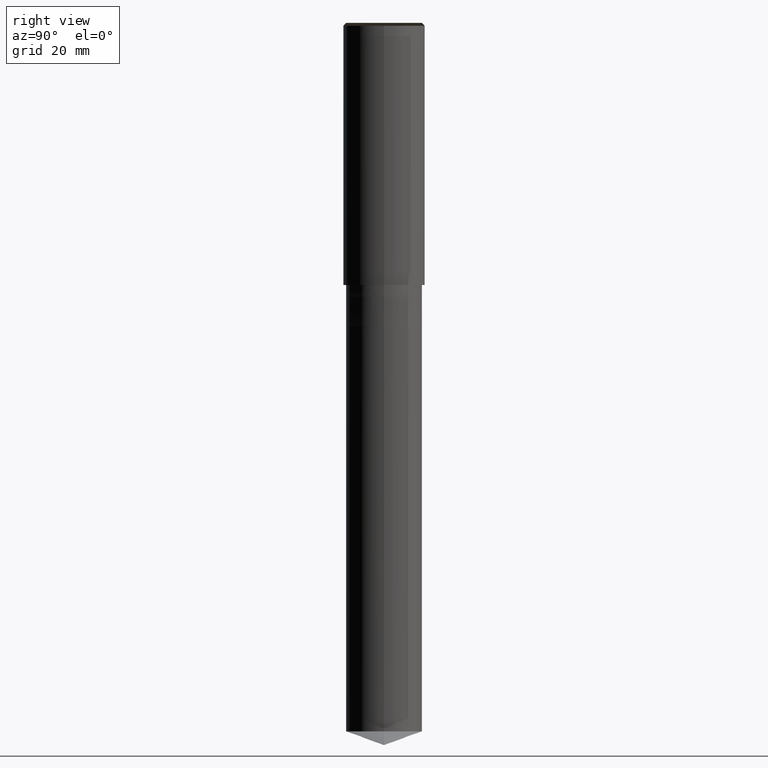
[diagram: clean part render]
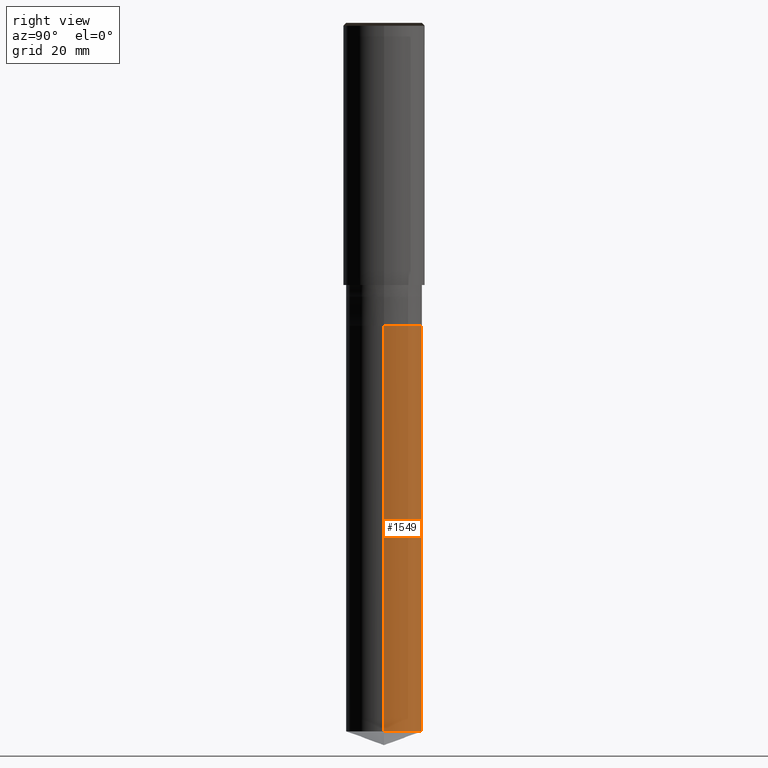
[diagram: same view with one face highlighted and labeled with its STEP entity id]
A machine part, right view. The second image highlights one B-rep face of the part: STEP entity #1549.
In plain terms, the highlighted face is a freeform B-spline surface patch.
Its self-contained STEP definition (entity closure, byte-faithful):
#1451=CARTESIAN_POINT('',(6.5,0.0,-76.63419347727));
#1452=CARTESIAN_POINT('',(6.5,6.5,-76.63419347727));
#1453=CARTESIAN_POINT('',(0.0,6.5,-76.63419347727));
#1454=CARTESIAN_POINT('',(-6.5,6.5,-76.63419347727));
#1455=CARTESIAN_POINT('',(-6.5,0.0,-76.63419347727));
#1456=CARTESIAN_POINT('',(6.5,0.0,-7.0));
#1457=CARTESIAN_POINT('',(6.5,6.5,-7.0));
#1458=CARTESIAN_POINT('',(0.0,6.5,-7.0));
#1459=CARTESIAN_POINT('',(-6.5,6.5,-7.0));
#1460=CARTESIAN_POINT('',(-6.5,0.0,-7.0));
#1530=(
BOUNDED_SURFACE()
B_SPLINE_SURFACE(1,2,(
(#1451,#1452,#1453,#1454,#1455),
(#1456,#1457,#1458,#1459,#1460)
), .UNSPECIFIED.,.F.,.F.,.F.)
B_SPLINE_SURFACE_WITH_KNOTS((2,2),(3,2,3),(
0.0,1.0),(
0.0,0.5,1.0), .UNSPECIFIED.)
GEOMETRIC_REPRESENTATION_ITEM()
RATIONAL_B_SPLINE_SURFACE(((1.0,0.707106781187,1.0,0.707106781187,1.0),
(1.0,0.707106781187,1.0,0.707106781187,1.0)
))
REPRESENTATION_ITEM('')
SURFACE()
);
#1531=(
BOUNDED_CURVE()
B_SPLINE_CURVE(2,(#1455,#1454,#1453,#1452,#1451),.UNSPECIFIED.,.F.,.F.)
B_SPLINE_CURVE_WITH_KNOTS((3,2,3),
(0.0,0.5,1.0),.UNSPECIFIED.)
CURVE()
GEOMETRIC_REPRESENTATION_ITEM()
RATIONAL_B_SPLINE_CURVE((1.0,0.707106781187,1.0,0.707106781187,1.0))
REPRESENTATION_ITEM('')
);
#1532=(
BOUNDED_CURVE()
B_SPLINE_CURVE(1,(#1451,#1456),.UNSPECIFIED.,.F.,.F.)
B_SPLINE_CURVE_WITH_KNOTS((2,2),
(0.0,1.0),.UNSPECIFIED.)
CURVE()
GEOMETRIC_REPRESENTATION_ITEM()
RATIONAL_B_SPLINE_CURVE((1.0,1.0))
REPRESENTATION_ITEM('')
);
#1533=(
BOUNDED_CURVE()
B_SPLINE_CURVE(2,(#1456,#1457,#1458,#1459,#1460),.UNSPECIFIED.,.F.,.F.)
B_SPLINE_CURVE_WITH_KNOTS((3,2,3),
(0.0,0.5,1.0),.UNSPECIFIED.)
CURVE()
GEOMETRIC_REPRESENTATION_ITEM()
RATIONAL_B_SPLINE_CURVE((1.0,0.707106781187,1.0,0.707106781187,1.0))
REPRESENTATION_ITEM('')
);
#1534=(
BOUNDED_CURVE()
B_SPLINE_CURVE(1,(#1460,#1455),.UNSPECIFIED.,.F.,.F.)
B_SPLINE_CURVE_WITH_KNOTS((2,2),
(0.0,1.0),.UNSPECIFIED.)
CURVE()
GEOMETRIC_REPRESENTATION_ITEM()
RATIONAL_B_SPLINE_CURVE((1.0,1.0))
REPRESENTATION_ITEM('')
);
#1535=VERTEX_POINT('',#1451);
#1536=VERTEX_POINT('',#1455);
#1537=VERTEX_POINT('',#1456);
#1538=VERTEX_POINT('',#1460);
#1539=EDGE_CURVE('',#1536,#1535,#1531,.T.);
#1540=EDGE_CURVE('',#1535,#1537,#1532,.T.);
#1541=EDGE_CURVE('',#1537,#1538,#1533,.T.);
#1542=EDGE_CURVE('',#1538,#1536,#1534,.T.);
#1543=ORIENTED_EDGE('',*,*,#1539,.T.);
#1544=ORIENTED_EDGE('',*,*,#1540,.T.);
#1545=ORIENTED_EDGE('',*,*,#1541,.T.);
#1546=ORIENTED_EDGE('',*,*,#1542,.T.);
#1547=EDGE_LOOP('',(#1543,#1544,#1545,#1546));
#1548=FACE_OUTER_BOUND('',#1547,.T.);
#1549=ADVANCED_FACE('',(#1548),#1530,.T.);